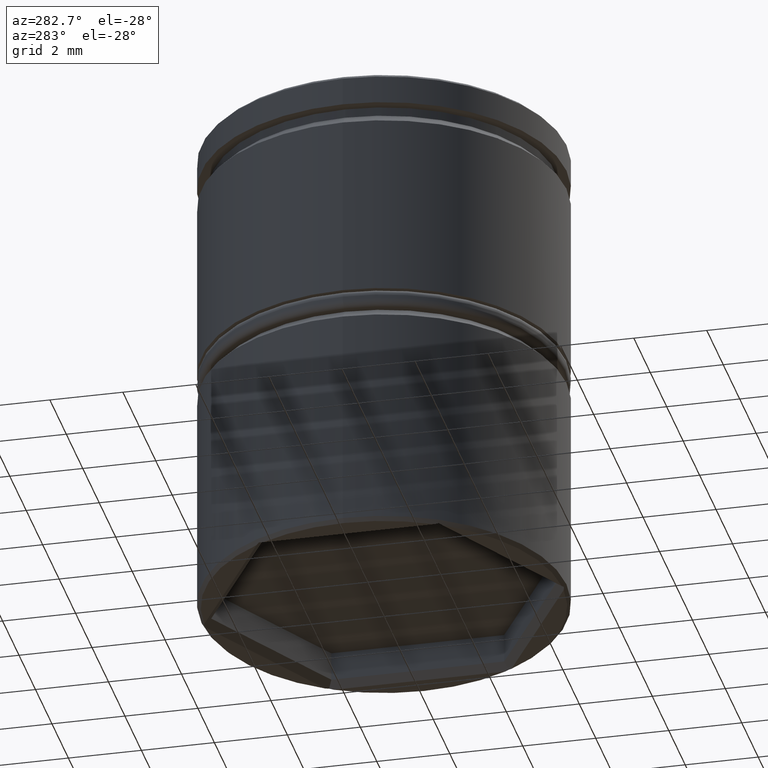
[diagram: clean part render]
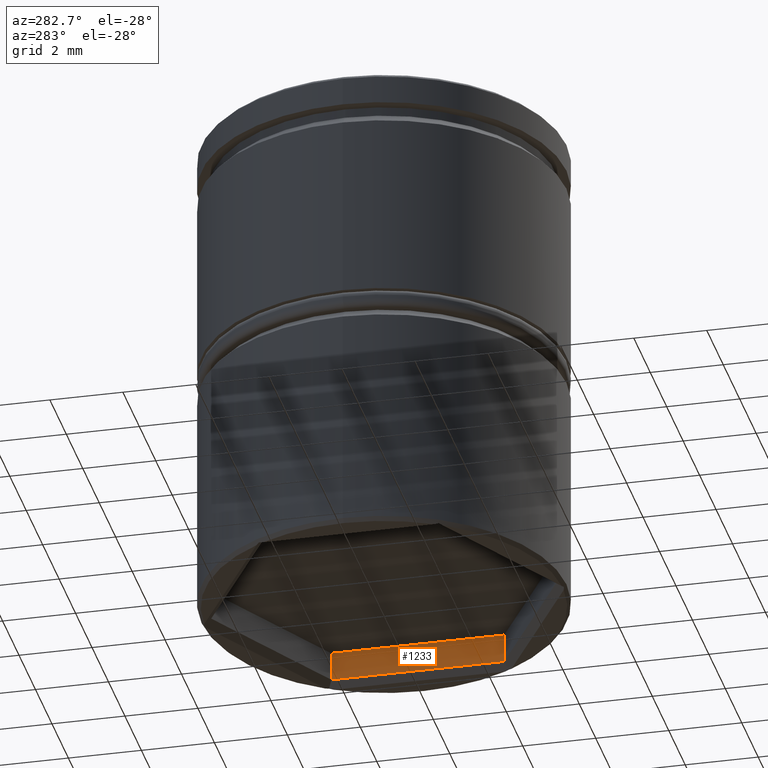
[diagram: same view with one face highlighted and labeled with its STEP entity id]
A machine part, auxiliary view. The second image highlights one B-rep face of the part: STEP entity #1233.
In plain terms, the highlighted planar face has unit normal (1, 0, -0).
Its self-contained STEP definition (entity closure, byte-faithful):
#61 = DIRECTION ( 'NONE',  ( -0.000000000000000000, -0.000000000000000000, -1.000000000000000000 ) ) ;
#62 = DIRECTION ( 'NONE',  ( 0.000000000000000000, -1.000000000000000000, 0.000000000000000000 ) ) ;
#120 = CARTESIAN_POINT ( 'NONE',  ( 4.100000000000003197, 2.367136103677466963, -12.50000000000000000 ) ) ;
#169 = DIRECTION ( 'NONE',  ( 1.000000000000000000, 0.000000000000000000, -0.000000000000000000 ) ) ;
#199 = LINE ( 'NONE', #1358, #328 ) ;
#235 = EDGE_CURVE ( 'NONE', #592, #263, #199, .T. ) ;
#247 = ORIENTED_EDGE ( 'NONE', *, *, #729, .F. ) ;
#263 = VERTEX_POINT ( 'NONE', #932 ) ;
#301 = LINE ( 'NONE', #721, #639 ) ;
#310 = LINE ( 'NONE', #120, #777 ) ;
#328 = VECTOR ( 'NONE', #62, 1000.000000000000000 ) ;
#372 = ORIENTED_EDGE ( 'NONE', *, *, #235, .T. ) ;
#395 = FACE_OUTER_BOUND ( 'NONE', #600, .T. ) ;
#427 = AXIS2_PLACEMENT_3D ( 'NONE', #1037, #169, #1364 ) ;
#592 = VERTEX_POINT ( 'NONE', #662 ) ;
#600 = EDGE_LOOP ( 'NONE', ( #892, #372, #247, #1215 ) ) ;
#637 = DIRECTION ( 'NONE',  ( 0.000000000000000000, -1.000000000000000000, 0.000000000000000000 ) ) ;
#639 = VECTOR ( 'NONE', #637, 1000.000000000000000 ) ;
#662 = CARTESIAN_POINT ( 'NONE',  ( 4.100000000000003197, 2.367136103677466963, -13.30000000000000071 ) ) ;
#721 = CARTESIAN_POINT ( 'NONE',  ( 4.100000000000003197, 2.367136103677466963, -12.50000000000000000 ) ) ;
#729 = EDGE_CURVE ( 'NONE', #1003, #263, #1148, .T. ) ;
#777 = VECTOR ( 'NONE', #1381, 1000.000000000000000 ) ;
#815 = PLANE ( 'NONE',  #427 ) ;
#892 = ORIENTED_EDGE ( 'NONE', *, *, #1131, .T. ) ;
#904 = EDGE_CURVE ( 'NONE', #1293, #1003, #301, .T. ) ;
#932 = CARTESIAN_POINT ( 'NONE',  ( 4.100000000000003197, -2.367136103677467407, -13.30000000000000071 ) ) ;
#976 = CARTESIAN_POINT ( 'NONE',  ( 4.100000000000003197, 2.367136103677466963, -12.50000000000000000 ) ) ;
#1003 = VERTEX_POINT ( 'NONE', #1310 ) ;
#1037 = CARTESIAN_POINT ( 'NONE',  ( 4.100000000000003197, 2.367136103677466963, -12.50000000000000000 ) ) ;
#1131 = EDGE_CURVE ( 'NONE', #1293, #592, #310, .T. ) ;
#1148 = LINE ( 'NONE', #1264, #1163 ) ;
#1163 = VECTOR ( 'NONE', #61, 1000.000000000000000 ) ;
#1215 = ORIENTED_EDGE ( 'NONE', *, *, #904, .F. ) ;
#1233 = ADVANCED_FACE ( 'NONE', ( #395 ), #815, .F. ) ;
#1264 = CARTESIAN_POINT ( 'NONE',  ( 4.100000000000003197, -2.367136103677467407, -12.50000000000000000 ) ) ;
#1293 = VERTEX_POINT ( 'NONE', #976 ) ;
#1310 = CARTESIAN_POINT ( 'NONE',  ( 4.100000000000003197, -2.367136103677467407, -12.50000000000000000 ) ) ;
#1358 = CARTESIAN_POINT ( 'NONE',  ( 4.100000000000003197, -2.367136103677467407, -13.30000000000000071 ) ) ;
#1364 = DIRECTION ( 'NONE',  ( -0.000000000000000000, 0.000000000000000000, -1.000000000000000000 ) ) ;
#1381 = DIRECTION ( 'NONE',  ( -0.000000000000000000, -0.000000000000000000, -1.000000000000000000 ) ) ;